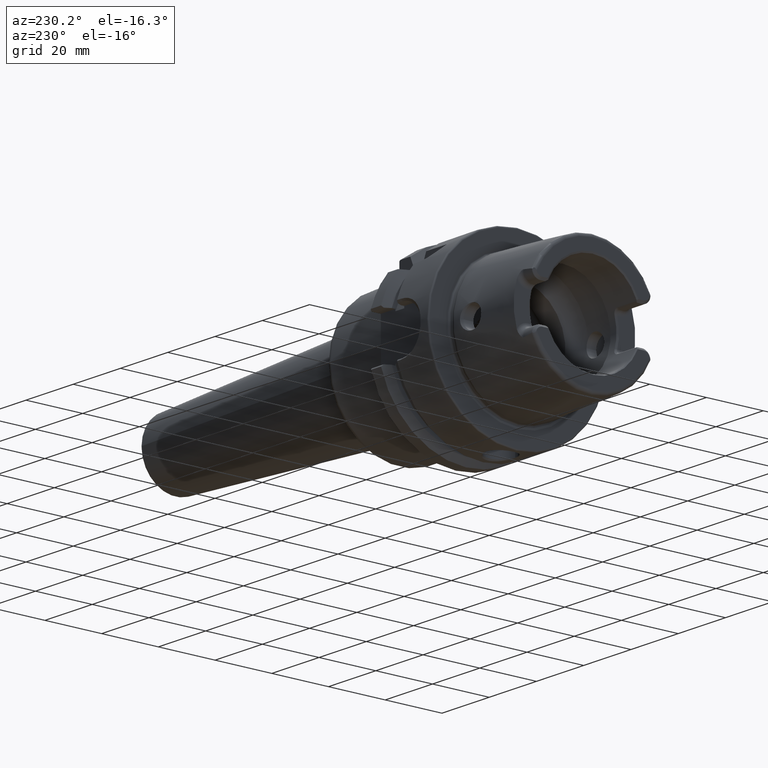
[diagram: clean part render]
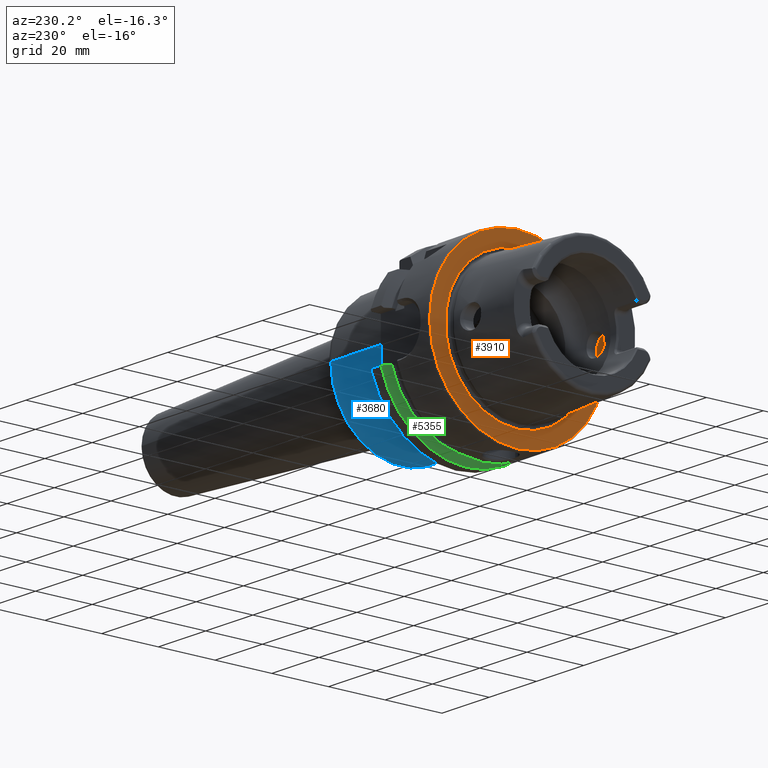
[diagram: same view with three faces highlighted in distinct colors, each labeled with its STEP entity id]
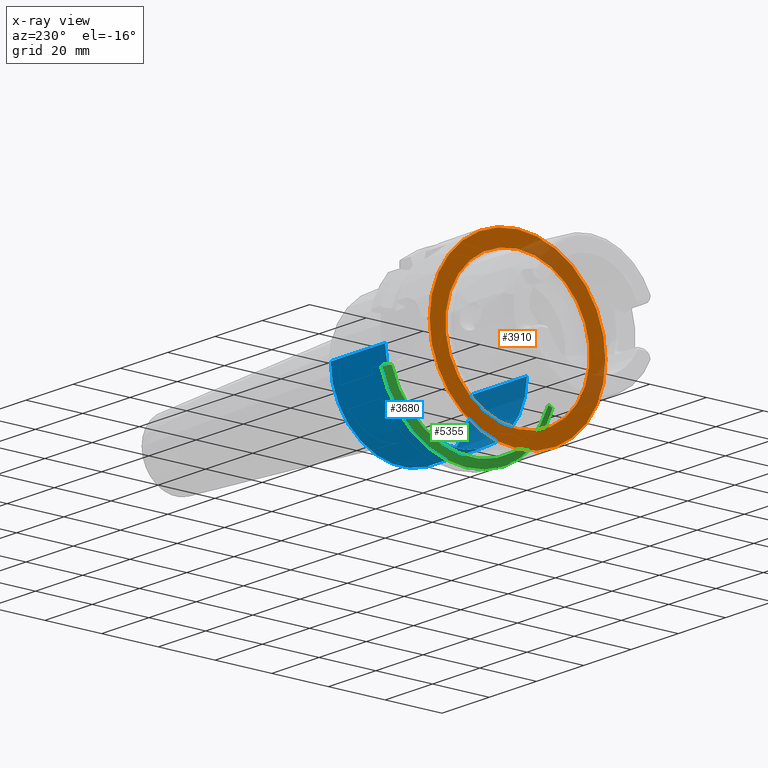
[diagram: x-ray of the same camera — body ghosted, the three highlighted faces saturated]
A machine part, auxiliary view with three faces highlighted in distinct colors.
The next image is the same camera in x-ray (body ghosted, the three faces saturated) — at least one of them is partly hidden behind the body in this view.
Their STEP definitions:

[orange] entity #3910 — the highlighted planar face has unit normal (1, 0, 0).
#958=CARTESIAN_POINT('',(0.E0,0.E0,0.E0));
#959=DIRECTION('',(1.E0,0.E0,0.E0));
#960=DIRECTION('',(0.E0,0.E0,-1.E0));
#961=AXIS2_PLACEMENT_3D('',#958,#959,#960);
#963=CARTESIAN_POINT('',(0.E0,0.E0,0.E0));
#964=DIRECTION('',(1.E0,0.E0,0.E0));
#965=DIRECTION('',(0.E0,0.E0,1.E0));
#966=AXIS2_PLACEMENT_3D('',#963,#964,#965);
#968=CARTESIAN_POINT('',(0.E0,0.E0,0.E0));
#969=DIRECTION('',(-1.E0,0.E0,0.E0));
#970=DIRECTION('',(0.E0,0.E0,1.E0));
#971=AXIS2_PLACEMENT_3D('',#968,#969,#970);
#973=CARTESIAN_POINT('',(0.E0,0.E0,0.E0));
#974=DIRECTION('',(-1.E0,0.E0,0.E0));
#975=DIRECTION('',(0.E0,0.E0,-1.E0));
#976=AXIS2_PLACEMENT_3D('',#973,#974,#975);
#2481=CARTESIAN_POINT('',(0.E0,0.E0,-2.54204E1));
#2482=CARTESIAN_POINT('',(0.E0,0.E0,2.54204E1));
#2483=VERTEX_POINT('',#2481);
#2484=VERTEX_POINT('',#2482);
#2810=CARTESIAN_POINT('',(0.E0,0.E0,3.1E1));
#2811=CARTESIAN_POINT('',(0.E0,1.138921523207E-14,-3.1E1));
#2812=VERTEX_POINT('',#2810);
#2813=VERTEX_POINT('',#2811);
#3894=CARTESIAN_POINT('',(0.E0,0.E0,0.E0));
#3895=DIRECTION('',(1.E0,0.E0,0.E0));
#3896=DIRECTION('',(0.E0,0.E0,1.E0));
#3897=AXIS2_PLACEMENT_3D('',#3894,#3895,#3896);
#3898=PLANE('',#3897);
#3899=ORIENTED_EDGE('',*,*,#3884,.F.);
#3901=ORIENTED_EDGE('',*,*,#3900,.F.);
#3902=EDGE_LOOP('',(#3899,#3901));
#3903=FACE_OUTER_BOUND('',#3902,.F.);
#3905=ORIENTED_EDGE('',*,*,#3904,.F.);
#3907=ORIENTED_EDGE('',*,*,#3906,.F.);
#3908=EDGE_LOOP('',(#3905,#3907));
#3909=FACE_BOUND('',#3908,.F.);
#3910=ADVANCED_FACE('',(#3903,#3909),#3898,.F.);
#962=CIRCLE('',#961,2.54204E1);
#967=CIRCLE('',#966,2.54204E1);
#972=CIRCLE('',#971,3.1E1);
#977=CIRCLE('',#976,3.1E1);
#3884=EDGE_CURVE('',#2812,#2813,#972,.T.);
#3900=EDGE_CURVE('',#2813,#2812,#977,.T.);
#3904=EDGE_CURVE('',#2483,#2484,#962,.T.);
#3906=EDGE_CURVE('',#2484,#2483,#967,.T.);

[blue] entity #3680 — the highlighted cylindrical surface (partial cylindrical patch) has radius 25 mm, axis along (1, 0, 0).
#658=DIRECTION('',(-1.E0,0.E0,0.E0));
#659=VECTOR('',#658,2.306293405506E1);
#660=CARTESIAN_POINT('',(4.906293405506E1,-2.5E1,0.E0));
#661=LINE('',#660,#659);
#662=CARTESIAN_POINT('',(4.906293405506E1,0.E0,0.E0));
#663=DIRECTION('',(-1.E0,0.E0,0.E0));
#664=DIRECTION('',(0.E0,1.E0,0.E0));
#665=AXIS2_PLACEMENT_3D('',#662,#663,#664);
#667=DIRECTION('',(-1.E0,0.E0,0.E0));
#668=VECTOR('',#667,2.306293405506E1);
#669=CARTESIAN_POINT('',(4.906293405506E1,2.5E1,0.E0));
#670=LINE('',#669,#668);
#716=CARTESIAN_POINT('',(2.6E1,0.E0,0.E0));
#717=DIRECTION('',(1.E0,0.E0,0.E0));
#718=DIRECTION('',(0.E0,-1.E0,0.E0));
#719=AXIS2_PLACEMENT_3D('',#716,#717,#718);
#2848=CARTESIAN_POINT('',(4.906293405506E1,2.5E1,0.E0));
#2849=VERTEX_POINT('',#2848);
#2878=CARTESIAN_POINT('',(4.906293405506E1,-2.5E1,0.E0));
#2879=VERTEX_POINT('',#2878);
#2892=CARTESIAN_POINT('',(2.6E1,2.5E1,0.E0));
#2893=CARTESIAN_POINT('',(2.6E1,-2.5E1,0.E0));
#2894=VERTEX_POINT('',#2892);
#2895=VERTEX_POINT('',#2893);
#3666=CARTESIAN_POINT('',(0.E0,0.E0,0.E0));
#3667=DIRECTION('',(1.E0,0.E0,0.E0));
#3668=DIRECTION('',(0.E0,-1.E0,0.E0));
#3669=AXIS2_PLACEMENT_3D('',#3666,#3667,#3668);
#3670=CYLINDRICAL_SURFACE('',#3669,2.5E1);
#3672=ORIENTED_EDGE('',*,*,#3671,.F.);
#3674=ORIENTED_EDGE('',*,*,#3673,.F.);
#3675=ORIENTED_EDGE('',*,*,#3659,.F.);
#3677=ORIENTED_EDGE('',*,*,#3676,.T.);
#3678=EDGE_LOOP('',(#3672,#3674,#3675,#3677));
#3679=FACE_OUTER_BOUND('',#3678,.F.);
#3680=ADVANCED_FACE('',(#3679),#3670,.T.);
#666=CIRCLE('',#665,2.5E1);
#720=CIRCLE('',#719,2.5E1);
#3659=EDGE_CURVE('',#2849,#2879,#666,.T.);
#3671=EDGE_CURVE('',#2895,#2894,#720,.T.);
#3673=EDGE_CURVE('',#2879,#2895,#661,.T.);
#3676=EDGE_CURVE('',#2849,#2894,#670,.T.);

[green] entity #5355 — the highlighted conical surface has half-angle 60 deg.
#2165=CARTESIAN_POINT('',(2.137749905409E1,3.030257052423E1,-8.602570524226E0));
#2166=CARTESIAN_POINT('',(2.132921046999E1,3.023485181706E1,-8.534851817061E0));
#2167=CARTESIAN_POINT('',(2.123311736136E1,3.009992541679E1,-8.399925416791E0));
#2168=CARTESIAN_POINT('',(2.109043172139E1,2.989907088202E1,-8.199070882020E0));
#2169=CARTESIAN_POINT('',(2.099627445276E1,2.976618689262E1,-8.066186892616E0));
#2170=CARTESIAN_POINT('',(2.094943773112E1,2.97E1,-8.E0));
#2172=CARTESIAN_POINT('',(1.9875E1,2.776816547996E1,-8.E0));
#2173=CARTESIAN_POINT('',(1.999165415311E1,2.797843452791E1,-8.E0));
#2174=CARTESIAN_POINT('',(2.022678408776E1,2.840189003059E1,-8.E0));
#2175=CARTESIAN_POINT('',(2.058492130902E1,2.904580805273E1,-8.E0));
#2176=CARTESIAN_POINT('',(2.082732680308E1,2.948095924086E1,-8.E0));
#2177=CARTESIAN_POINT('',(2.094943773112E1,2.97E1,-8.E0));
#2179=CARTESIAN_POINT('',(1.9875E1,0.E0,0.E0));
#2180=DIRECTION('',(-1.E0,0.E0,0.E0));
#2181=DIRECTION('',(0.E0,9.609161313143E-1,-2.768396441624E-1));
#2182=AXIS2_PLACEMENT_3D('',#2179,#2180,#2181);
#2184=CARTESIAN_POINT('',(2.110827564058E1,-2.97E1,-9.E0));
#2185=CARTESIAN_POINT('',(2.096740886767E1,-2.944505518705E1,-9.E0));
#2186=CARTESIAN_POINT('',(2.068822774339E1,-2.893923282223E1,-9.E0));
#2187=CARTESIAN_POINT('',(2.027716456988E1,-2.819275590811E1,-9.E0));
#2188=CARTESIAN_POINT('',(2.000820237647E1,-2.770314203488E1,-9.E0));
#2189=CARTESIAN_POINT('',(1.9875E1,-2.746035349595E1,-9.E0));
#2191=CARTESIAN_POINT('',(2.110827564058E1,-2.97E1,-9.E0));
#2192=CARTESIAN_POINT('',(2.115274337122E1,-2.976176295487E1,
-9.061762954871E0));
#2193=CARTESIAN_POINT('',(2.124208175331E1,-2.988571693019E1,
-9.185716930188E0));
#2194=CARTESIAN_POINT('',(2.133222573231E1,-3.001052712454E1,
-9.310527124541E0));
#2195=CARTESIAN_POINT('',(2.137749905409E1,-3.007314630073E1,
-9.373146300730E0));
#2197=CARTESIAN_POINT('',(2.137749905409E1,0.E0,0.E0));
#2198=DIRECTION('',(1.E0,0.E0,0.E0));
#2199=DIRECTION('',(0.E0,-9.547030571660E-1,-2.975602000232E-1));
#2200=AXIS2_PLACEMENT_3D('',#2197,#2198,#2199);
#2525=CARTESIAN_POINT('',(1.9875E1,2.776816547996E1,-8.E0));
#2526=VERTEX_POINT('',#2525);
#2557=CARTESIAN_POINT('',(1.9875E1,-2.746035349595E1,-9.E0));
#2558=VERTEX_POINT('',#2557);
#2777=VERTEX_POINT('',#2191);
#2778=VERTEX_POINT('',#2195);
#2800=VERTEX_POINT('',#2165);
#2801=VERTEX_POINT('',#2170);
#5340=CARTESIAN_POINT('',(2.062624952704E1,0.E0,0.E0));
#5341=DIRECTION('',(1.E0,0.E0,0.E0));
#5342=DIRECTION('',(0.E0,0.E0,1.E0));
#5343=AXIS2_PLACEMENT_3D('',#5340,#5341,#5342);
#5344=CONICAL_SURFACE('',#5343,3.019879765E1,6.E1);
#5345=ORIENTED_EDGE('',*,*,#3841,.T.);
#5347=ORIENTED_EDGE('',*,*,#5346,.F.);
#5349=ORIENTED_EDGE('',*,*,#5348,.T.);
#5350=ORIENTED_EDGE('',*,*,#5299,.F.);
#5351=ORIENTED_EDGE('',*,*,#5272,.T.);
#5352=ORIENTED_EDGE('',*,*,#3745,.T.);
#5353=EDGE_LOOP('',(#5345,#5347,#5349,#5350,#5351,#5352));
#5354=FACE_OUTER_BOUND('',#5353,.F.);
#5355=ADVANCED_FACE('',(#5354),#5344,.T.);
#2171=B_SPLINE_CURVE_WITH_KNOTS('',3,(#2165,#2166,#2167,#2168,#2169,#2170),
.UNSPECIFIED.,.F.,.F.,(4,1,1,4),(0.E0,3.333333333333E-1,6.666666666667E-1,1.E0),
.UNSPECIFIED.);
#2178=B_SPLINE_CURVE_WITH_KNOTS('',3,(#2172,#2173,#2174,#2175,#2176,#2177),
.UNSPECIFIED.,.F.,.F.,(4,1,1,4),(0.E0,3.333333333333E-1,6.666666666667E-1,1.E0),
.UNSPECIFIED.);
#2183=CIRCLE('',#2182,2.88975953E1);
#2190=B_SPLINE_CURVE_WITH_KNOTS('',3,(#2184,#2185,#2186,#2187,#2188,#2189),
.UNSPECIFIED.,.F.,.F.,(4,1,1,4),(0.E0,3.333333333333E-1,6.666666666667E-1,1.E0),
.UNSPECIFIED.);
#2196=B_SPLINE_CURVE_WITH_KNOTS('',3,(#2191,#2192,#2193,#2194,#2195),
.UNSPECIFIED.,.F.,.F.,(4,1,4),(0.E0,5.E-1,1.E0),.UNSPECIFIED.);
#2201=CIRCLE('',#2200,3.15E1);
#3745=EDGE_CURVE('',#2778,#2800,#2201,.T.);
#3841=EDGE_CURVE('',#2800,#2801,#2171,.T.);
#5272=EDGE_CURVE('',#2777,#2778,#2196,.T.);
#5299=EDGE_CURVE('',#2777,#2558,#2190,.T.);
#5346=EDGE_CURVE('',#2526,#2801,#2178,.T.);
#5348=EDGE_CURVE('',#2526,#2558,#2183,.T.);